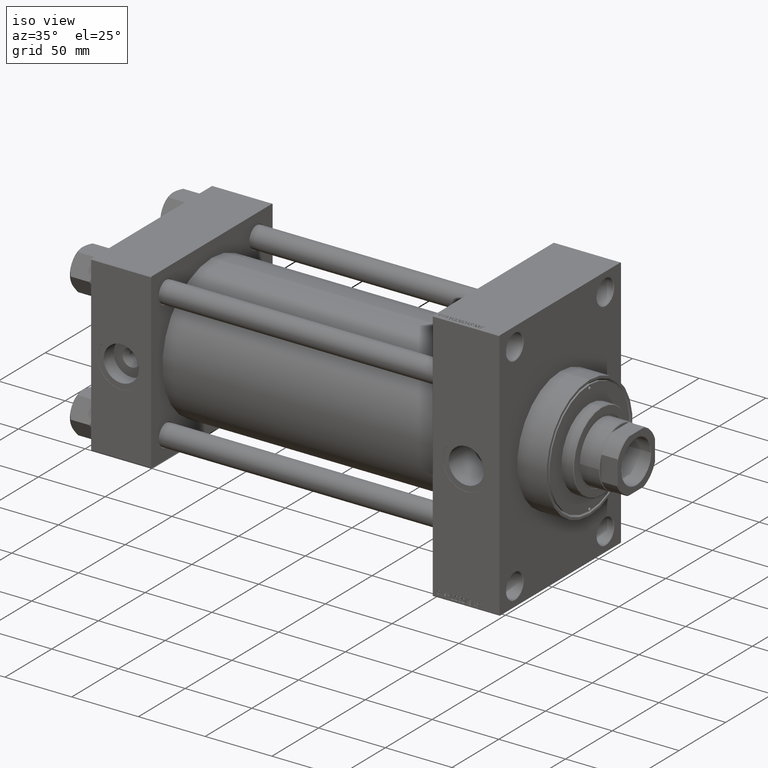
[diagram: clean part render]
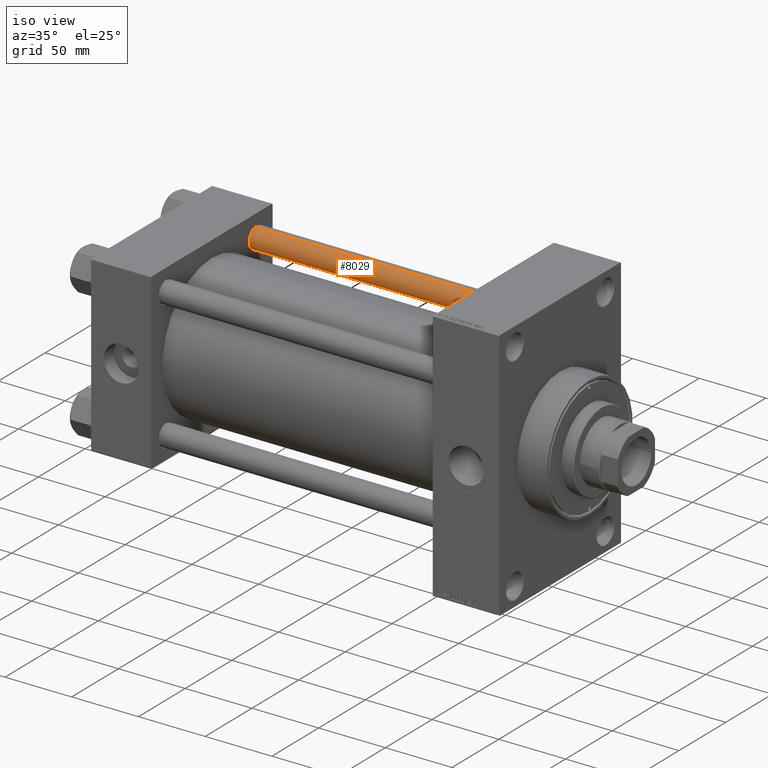
[diagram: same view with one face highlighted and labeled with its STEP entity id]
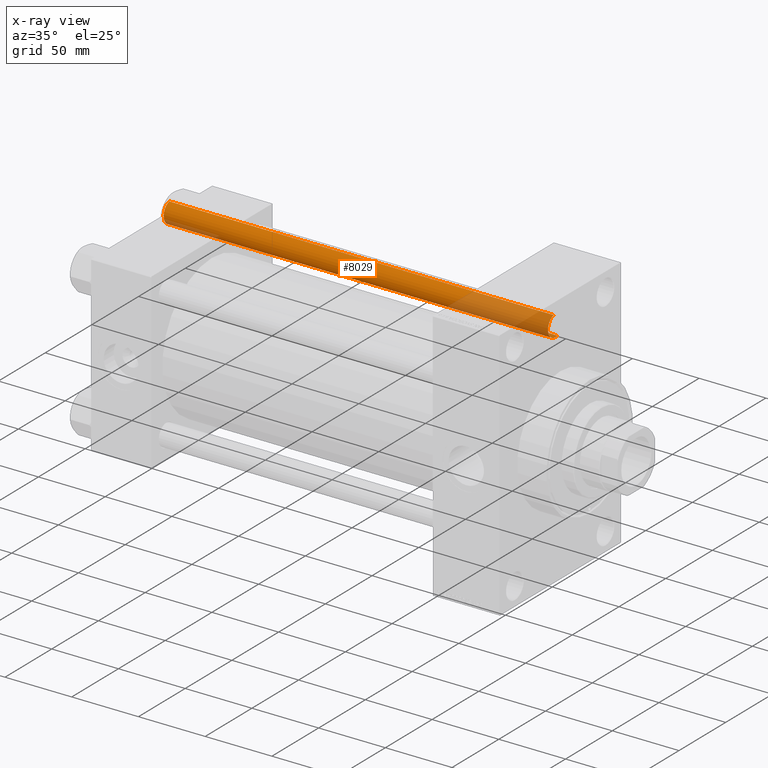
[diagram: x-ray of the same camera — body ghosted, the highlighted face saturated]
A machine part, iso view. The second image highlights one B-rep face of the part: STEP entity #8029.
The next image is the same camera in x-ray: the body ghosted, the highlighted face saturated — about 26% of this face is hidden behind the body in this view.
In plain terms, the highlighted cylindrical surface (edge-blend (fillet) strip) has radius 8 mm, axis along (-1, -0, 0).
Its self-contained STEP definition (entity closure, byte-faithful):
#7 = EDGE_CURVE ( 'NONE', #38663, #42924, #38388, .T. ) ;
#132 = DIRECTION ( 'NONE',  ( -0.000000000000000000, -0.000000000000000000, -1.000000000000000000 ) ) ;
#241 = CARTESIAN_POINT ( 'NONE',  ( 8.000000000000000000, 9.797174393178825657E-16, 288.5000000000000000 ) ) ;
#1165 = EDGE_CURVE ( 'NONE', #38663, #5249, #41573, .T. ) ;
#4222 = CARTESIAN_POINT ( 'NONE',  ( 0.000000000000000000, 0.000000000000000000, 288.5000000000000000 ) ) ;
#5249 = VERTEX_POINT ( 'NONE', #14635 ) ;
#6958 = CARTESIAN_POINT ( 'NONE',  ( 8.000000000000000000, 9.797174393178825657E-16, 289.0000000000000000 ) ) ;
#8029 = ADVANCED_FACE ( 'NONE', ( #18761 ), #30133, .T. ) ;
#8675 = CARTESIAN_POINT ( 'NONE',  ( -8.000000000000000000, 0.000000000000000000, 0.5000000000000004441 ) ) ;
#8852 = ORIENTED_EDGE ( 'NONE', *, *, #7, .T. ) ;
#9165 = CARTESIAN_POINT ( 'NONE',  ( -8.000000000000000000, 0.000000000000000000, 288.5000000000000000 ) ) ;
#12354 = CARTESIAN_POINT ( 'NONE',  ( -8.000000000000000000, 0.000000000000000000, 289.0000000000000000 ) ) ;
#13085 = VECTOR ( 'NONE', #43189, 1000.000000000000000 ) ;
#14635 = CARTESIAN_POINT ( 'NONE',  ( 8.000000000000000000, 9.797174393178825657E-16, 0.5000000000000004441 ) ) ;
#16234 = DIRECTION ( 'NONE',  ( -0.000000000000000000, -0.000000000000000000, 1.000000000000000000 ) ) ;
#16728 = ORIENTED_EDGE ( 'NONE', *, *, #32351, .T. ) ;
#17894 = ORIENTED_EDGE ( 'NONE', *, *, #48104, .T. ) ;
#18761 = FACE_OUTER_BOUND ( 'NONE', #39996, .T. ) ;
#20265 = CARTESIAN_POINT ( 'NONE',  ( 0.000000000000000000, 0.000000000000000000, 0.5000000000000004441 ) ) ;
#22292 = DIRECTION ( 'NONE',  ( -1.000000000000000000, 0.000000000000000000, 0.000000000000000000 ) ) ;
#23710 = LINE ( 'NONE', #12354, #13085 ) ;
#26354 = AXIS2_PLACEMENT_3D ( 'NONE', #20265, #16234, #34932 ) ;
#27216 = DIRECTION ( 'NONE',  ( 1.000000000000000000, 0.000000000000000000, 0.000000000000000000 ) ) ;
#28771 = CIRCLE ( 'NONE', #26354, 8.000000000000000000 ) ;
#30133 = CYLINDRICAL_SURFACE ( 'NONE', #40440, 8.000000000000000000 ) ;
#32351 = EDGE_CURVE ( 'NONE', #42879, #5249, #28771, .T. ) ;
#32746 = VECTOR ( 'NONE', #132, 1000.000000000000000 ) ;
#33568 = ORIENTED_EDGE ( 'NONE', *, *, #1165, .F. ) ;
#34349 = AXIS2_PLACEMENT_3D ( 'NONE', #4222, #46442, #27216 ) ;
#34932 = DIRECTION ( 'NONE',  ( 1.000000000000000000, 0.000000000000000000, 0.000000000000000000 ) ) ;
#38388 = CIRCLE ( 'NONE', #34349, 8.000000000000000000 ) ;
#38474 = CARTESIAN_POINT ( 'NONE',  ( 0.000000000000000000, 0.000000000000000000, 289.0000000000000000 ) ) ;
#38663 = VERTEX_POINT ( 'NONE', #241 ) ;
#39996 = EDGE_LOOP ( 'NONE', ( #33568, #8852, #17894, #16728 ) ) ;
#40440 = AXIS2_PLACEMENT_3D ( 'NONE', #38474, #49111, #22292 ) ;
#41573 = LINE ( 'NONE', #6958, #32746 ) ;
#42879 = VERTEX_POINT ( 'NONE', #8675 ) ;
#42924 = VERTEX_POINT ( 'NONE', #9165 ) ;
#43189 = DIRECTION ( 'NONE',  ( -0.000000000000000000, -0.000000000000000000, -1.000000000000000000 ) ) ;
#46442 = DIRECTION ( 'NONE',  ( 0.000000000000000000, 0.000000000000000000, -1.000000000000000000 ) ) ;
#48104 = EDGE_CURVE ( 'NONE', #42924, #42879, #23710, .T. ) ;
#49111 = DIRECTION ( 'NONE',  ( -0.000000000000000000, -0.000000000000000000, -1.000000000000000000 ) ) ;